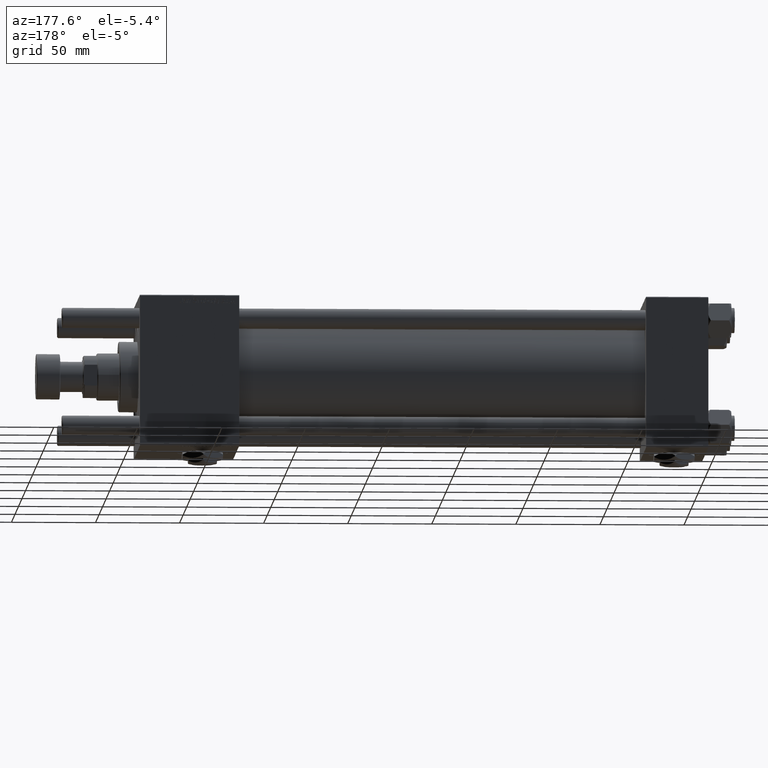
[diagram: clean part render]
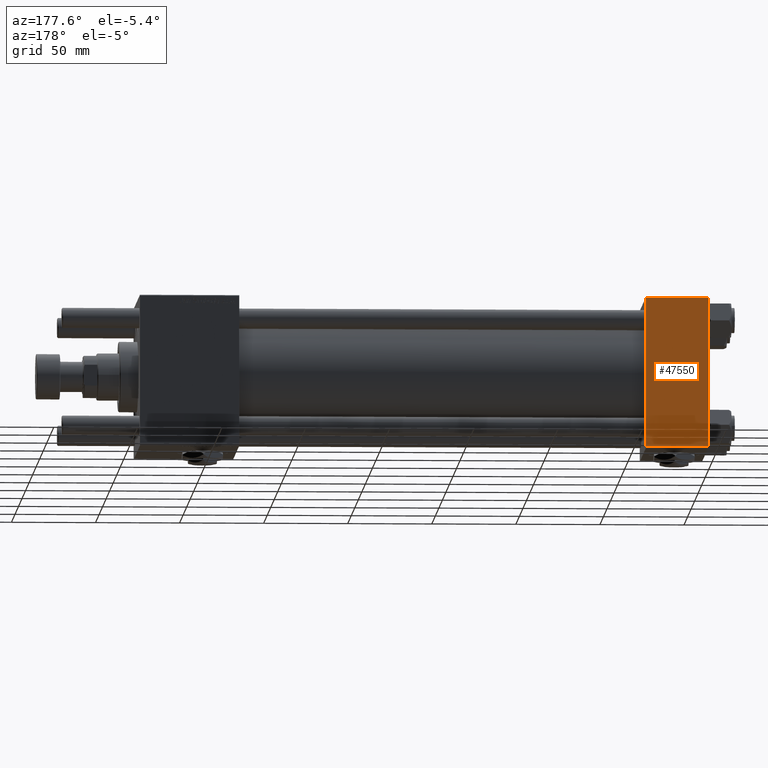
[diagram: same view with one face highlighted and labeled with its STEP entity id]
A machine part, auxiliary view. The second image highlights one B-rep face of the part: STEP entity #47550.
In plain terms, the highlighted planar face has unit normal (0, 1, 0).
Its self-contained STEP definition (entity closure, byte-faithful):
#493 = EDGE_CURVE ( 'NONE', #56419, #45530, #43361, .T. ) ;
#2387 = VECTOR ( 'NONE', #31600, 1000.000000000000000 ) ;
#4169 = ORIENTED_EDGE ( 'NONE', *, *, #42165, .T. ) ;
#4693 = EDGE_LOOP ( 'NONE', ( #34205, #8409, #46136, #4169 ) ) ;
#6269 = CARTESIAN_POINT ( 'NONE',  ( 37.00000000000000000, 44.99999999999998579, 45.00000000000001421 ) ) ;
#8409 = ORIENTED_EDGE ( 'NONE', *, *, #21746, .T. ) ;
#10779 = PLANE ( 'NONE',  #59183 ) ;
#11094 = DIRECTION ( 'NONE',  ( 1.000000000000000000, 0.000000000000000000, 0.000000000000000000 ) ) ;
#11367 = CARTESIAN_POINT ( 'NONE',  ( 37.00000000000000000, 44.99999999999998579, 44.50000000000001421 ) ) ;
#11545 = EDGE_CURVE ( 'NONE', #19474, #17836, #15037, .T. ) ;
#15037 = LINE ( 'NONE', #33307, #34672 ) ;
#15517 = CARTESIAN_POINT ( 'NONE',  ( 37.00000000000000000, 44.99999999999998579, -44.49999999999995737 ) ) ;
#16162 = VECTOR ( 'NONE', #11094, 1000.000000000000000 ) ;
#17836 = VERTEX_POINT ( 'NONE', #15517 ) ;
#18980 = LINE ( 'NONE', #51074, #2387 ) ;
#19474 = VERTEX_POINT ( 'NONE', #11367 ) ;
#21746 = EDGE_CURVE ( 'NONE', #17836, #45530, #18980, .T. ) ;
#23408 = DIRECTION ( 'NONE',  ( 0.000000000000000000, 0.000000000000000000, -1.000000000000000000 ) ) ;
#25820 = VECTOR ( 'NONE', #52666, 1000.000000000000000 ) ;
#29026 = DIRECTION ( 'NONE',  ( -0.000000000000000000, 1.000000000000000000, 0.000000000000000000 ) ) ;
#31600 = DIRECTION ( 'NONE',  ( -1.000000000000000000, 0.000000000000000000, 0.000000000000000000 ) ) ;
#33307 = CARTESIAN_POINT ( 'NONE',  ( 37.00000000000000000, 44.99999999999998579, 45.00000000000001421 ) ) ;
#34205 = ORIENTED_EDGE ( 'NONE', *, *, #11545, .T. ) ;
#34369 = CARTESIAN_POINT ( 'NONE',  ( 0.000000000000000000, 44.99999999999998579, 45.00000000000001421 ) ) ;
#34672 = VECTOR ( 'NONE', #23408, 1000.000000000000000 ) ;
#38031 = LINE ( 'NONE', #56332, #16162 ) ;
#39452 = CARTESIAN_POINT ( 'NONE',  ( 0.000000000000000000, 44.99999999999998579, 44.50000000000001421 ) ) ;
#42165 = EDGE_CURVE ( 'NONE', #56419, #19474, #38031, .T. ) ;
#43361 = LINE ( 'NONE', #34369, #25820 ) ;
#45530 = VERTEX_POINT ( 'NONE', #46973 ) ;
#46136 = ORIENTED_EDGE ( 'NONE', *, *, #493, .F. ) ;
#46973 = CARTESIAN_POINT ( 'NONE',  ( 0.000000000000000000, 44.99999999999998579, -44.49999999999995737 ) ) ;
#47307 = DIRECTION ( 'NONE',  ( 0.000000000000000000, -0.000000000000000000, 1.000000000000000000 ) ) ;
#47550 = ADVANCED_FACE ( 'NONE', ( #51820 ), #10779, .T. ) ;
#51074 = CARTESIAN_POINT ( 'NONE',  ( 37.00000000000000000, 44.99999999999998579, -44.49999999999998579 ) ) ;
#51820 = FACE_OUTER_BOUND ( 'NONE', #4693, .T. ) ;
#52666 = DIRECTION ( 'NONE',  ( 0.000000000000000000, 0.000000000000000000, -1.000000000000000000 ) ) ;
#56332 = CARTESIAN_POINT ( 'NONE',  ( 37.00000000000000000, 44.99999999999998579, 44.50000000000001421 ) ) ;
#56419 = VERTEX_POINT ( 'NONE', #39452 ) ;
#59183 = AXIS2_PLACEMENT_3D ( 'NONE', #6269, #29026, #47307 ) ;